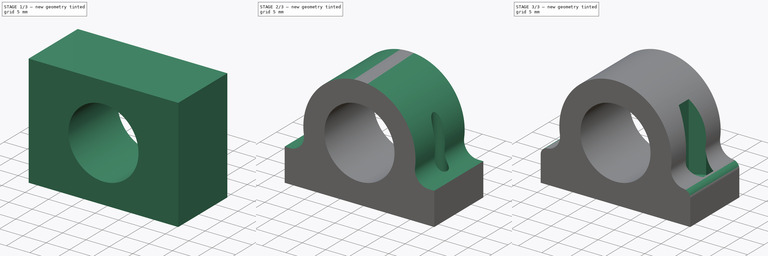
[diagram: build sequence overview — one tinted view per stage of 3, left to right]
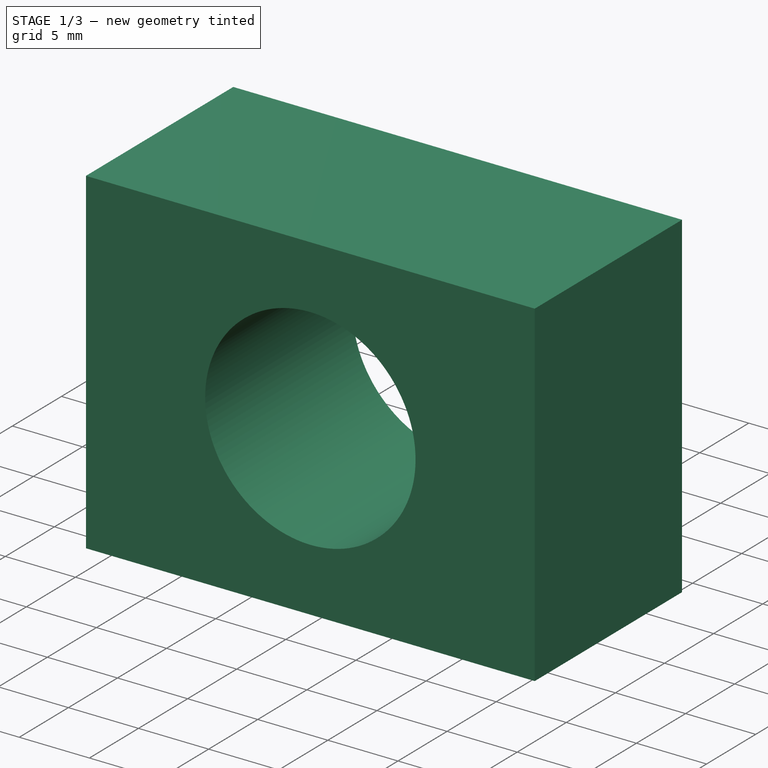
[diagram: stage 1 of 3 — iso view after this stage's code; geometry added in this stage tinted green]
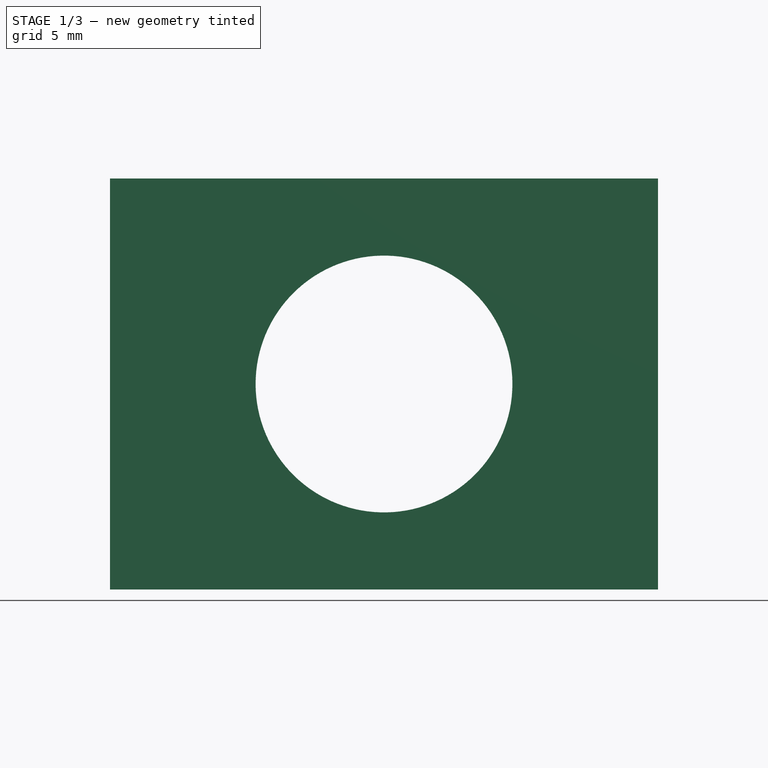
[diagram: stage 1 of 3 — front view after this stage's code; geometry added in this stage tinted green]
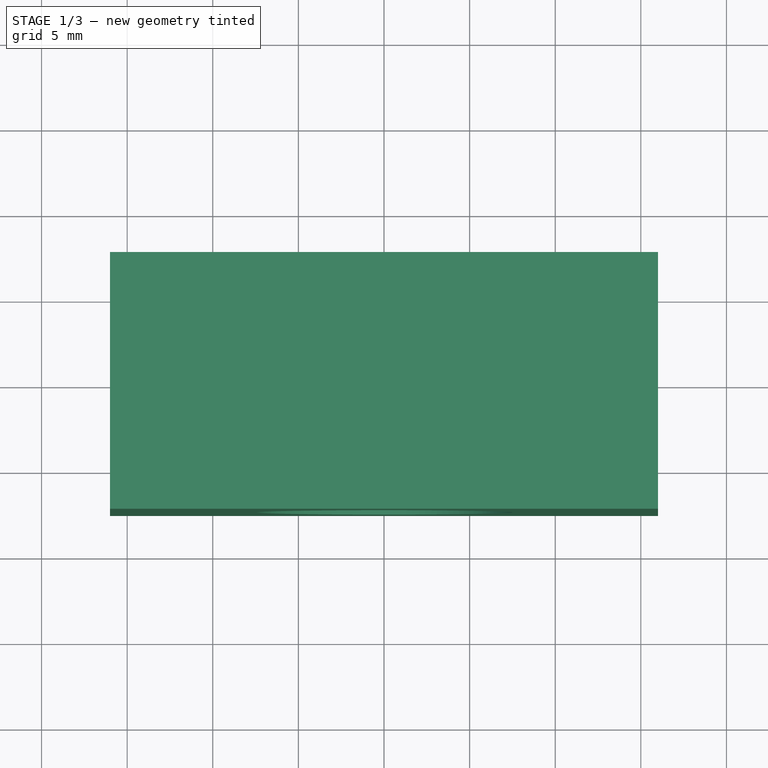
[diagram: stage 1 of 3 — top view after this stage's code; geometry added in this stage tinted green]
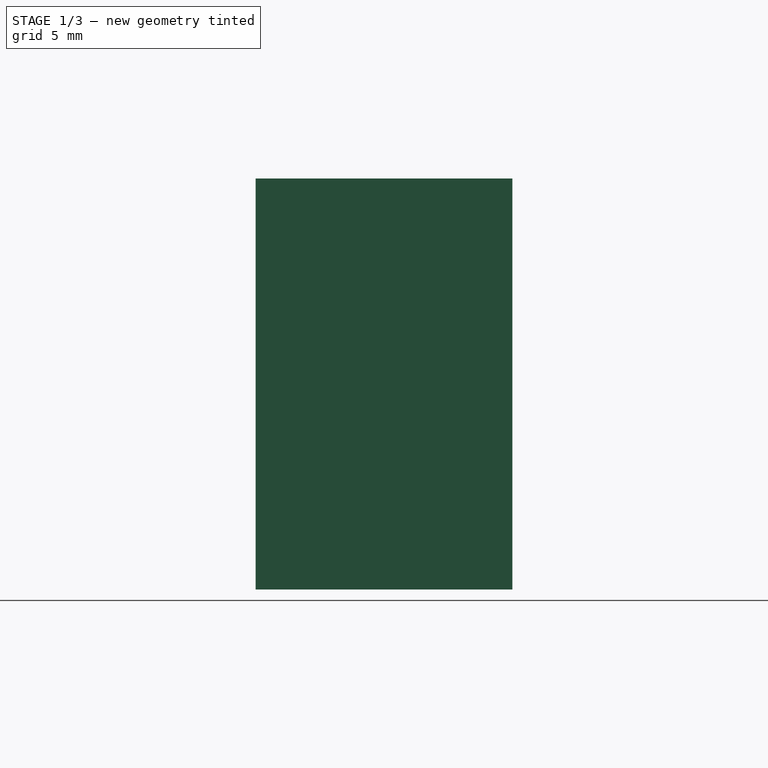
[diagram: stage 1 of 3 — right view after this stage's code; geometry added in this stage tinted green]
FCSTD DOCUMENT  (FreeCAD 0.19R22164 (Git))
Label: lm8uu_Y_Car_holder
License: All rights reserved
LicenseURL: http://en.wikipedia.org/wiki/All_rights_reserved
objects: Sketcher::SketchObject×5, PartDesign::Pocket×2, PartDesign::Pad×1, PartDesign::Groove×1, PartDesign::Hole×1, PartDesign::Fillet×1, PartDesign::Body×1
note: 18 computed .brp shape members not serialized (recipe doc carries the construction recipe); baked Part::Feature solids carry a one-line shape summary decoded from their .brp

FEATURE [Sketcher::SketchObject] Sketch
  MapMode = 5
  Support = -> [XY_Plane]
  sketch-geometry (4):
    g0: LineSegment StartX=-16 StartY=7.5 StartZ=0 EndX=16 EndY=7.5 EndZ=0
    g1: LineSegment StartX=16 StartY=7.5 StartZ=0 EndX=16 EndY=-7.5 EndZ=0
    g2: LineSegment StartX=16 StartY=-7.5 StartZ=0 EndX=-16 EndY=-7.5 EndZ=0
    g3: LineSegment StartX=-16 StartY=-7.5 StartZ=0 EndX=-16 EndY=7.5 EndZ=0
  constraints (12):
    c: Coincident(g0,g1)
    c: Coincident(g1,g2)
    c: Coincident(g2,g3)
    c: Coincident(g3,g0)
    c: Horizontal(g0)
    c: Horizontal(g2)
    c: Vertical(g1)
    c: Vertical(g3)
    c: DistanceX(g0,g-1) = 16
    c: DistanceX(g0,g0) = 32
    c: DistanceY(g-1,g0) = 7.5
    c: DistanceY(g2,g-1) = 7.5
FEATURE [PartDesign::Pad] Pad
  Length = 24
  Length2 = 100
  Profile = -> Sketch
  Type = 0
FEATURE [Sketcher::SketchObject] Sketch001
  AttachmentOffset = pos=(0,0,12) rot=(0,0,1;0rad)
  MapMode = 5
  Placement = pos=(0,0,12) rot=(0,0,1;0rad)
  Support = -> [XY_Plane]
  sketch-geometry (4):
    g0: LineSegment StartX=0 StartY=7.5 StartZ=0 EndX=-7.5 EndY=7.5 EndZ=0
    g1: LineSegment StartX=-7.5 StartY=7.5 StartZ=0 EndX=-7.5 EndY=-7.5 EndZ=0
    g2: LineSegment StartX=-7.5 StartY=-7.5 StartZ=0 EndX=0 EndY=-7.5 EndZ=0
    g3: LineSegment StartX=0 StartY=-7.5 StartZ=0 EndX=0 EndY=7.5 EndZ=0
  constraints (12):
    c: Coincident(g0,g1)
    c: Coincident(g1,g2)
    c: Coincident(g2,g3)
    c: Coincident(g3,g0)
    c: Horizontal(g0)
    c: Horizontal(g2)
    c: Vertical(g1)
    c: Vertical(g3)
    c: PointOnObject(g0,g-2)
    c: DistanceX(g0,g0) = 7.5
    c: DistanceY(g-1,g0) = 7.5
    c: DistanceY(g2,g-1) = 7.5
FEATURE [PartDesign::Groove] Groove
  Angle = 360
  Axis = (0,1,0)
  Base = (0,0,12)
  BaseFeature = -> Pad
  Profile = -> Sketch001
  ReferenceAxis = -> Sketch001 [V_Axis]
  Reversed = true
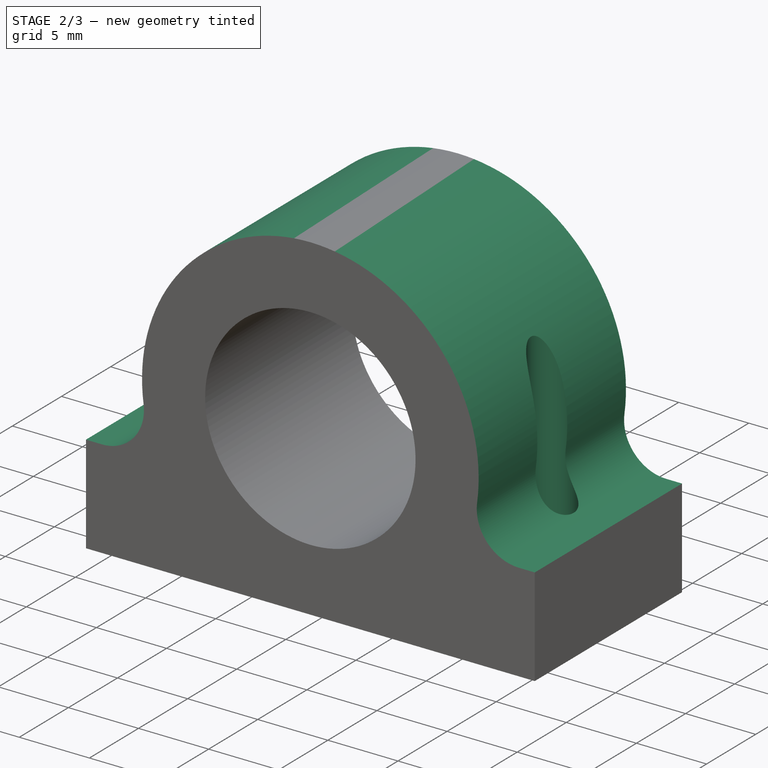
[diagram: stage 2 of 3 — iso view after this stage's code; geometry added in this stage tinted green]
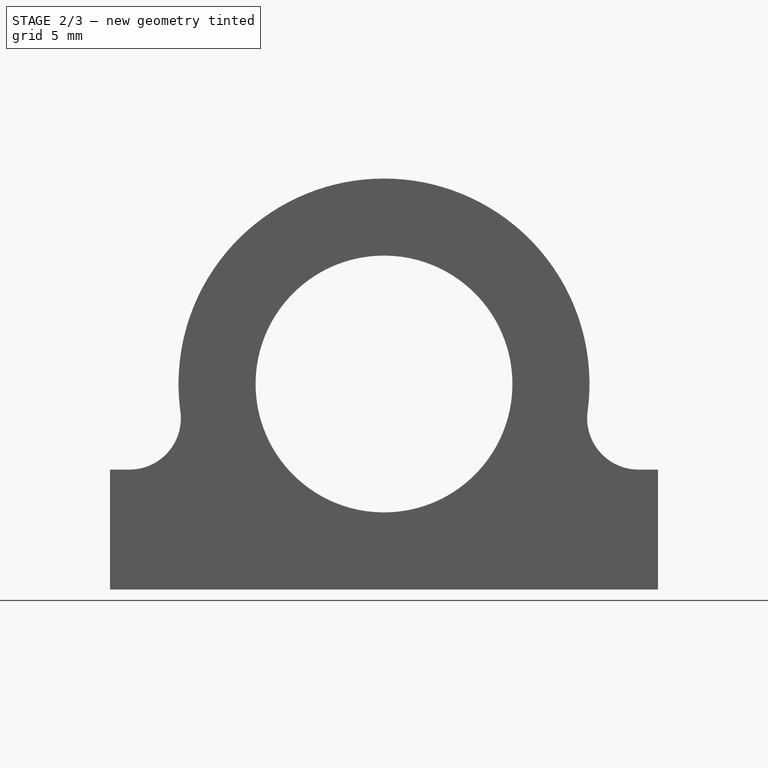
[diagram: stage 2 of 3 — front view after this stage's code; geometry added in this stage tinted green]
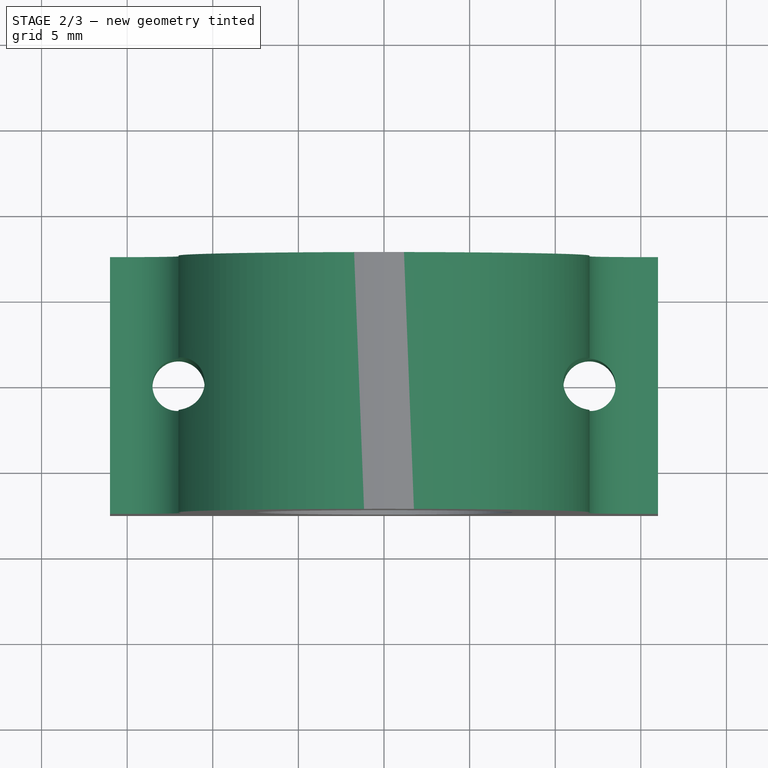
[diagram: stage 2 of 3 — top view after this stage's code; geometry added in this stage tinted green]
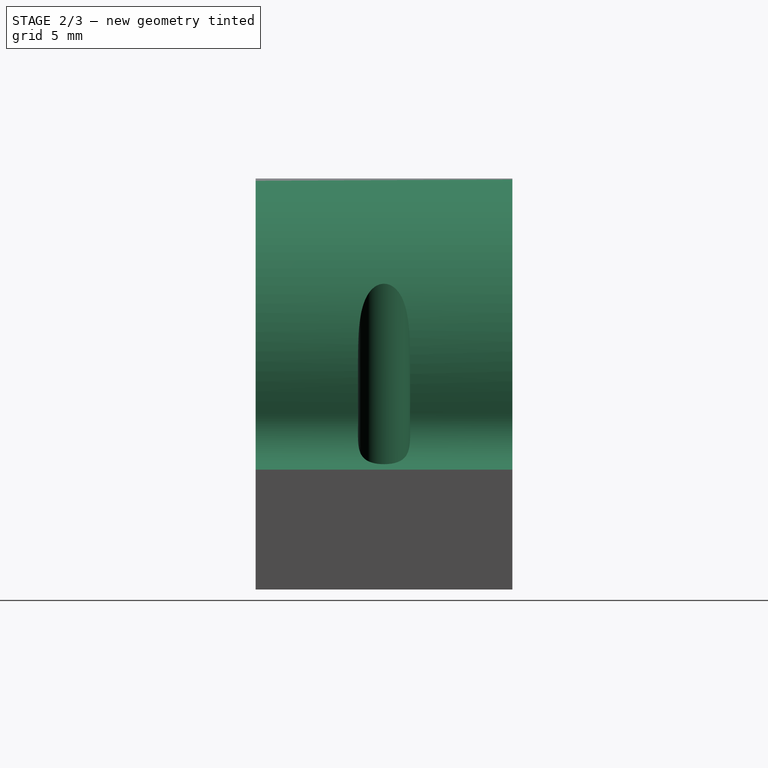
[diagram: stage 2 of 3 — right view after this stage's code; geometry added in this stage tinted green]
FEATURE [Sketcher::SketchObject] Sketch002
  AttachmentOffset = pos=(0,0,24) rot=(0,0,1;0rad)
  MapMode = 5
  Placement = pos=(0,0,24) rot=(0,0,1;0rad)
  Support = -> [XY_Plane]
  sketch-geometry (2):
    g0: Circle CenterX=12 CenterY=0 CenterZ=0 NormalX=0 NormalY=0 NormalZ=1 AngleXU=0 Radius=1.5
    g1: Circle CenterX=-12 CenterY=0 CenterZ=0 NormalX=0 NormalY=0 NormalZ=1 AngleXU=0 Radius=1.5
  constraints (6):
    c: PointOnObject(g0,g-1)
    c: Radius(g0) = 1.5
    c: PointOnObject(g1,g-1)
    c: Radius(g1) = 1.5
    c: DistanceX(g1,g-1) = 12
    c: DistanceX(g-1,g0) = 12
FEATURE [PartDesign::Hole] Hole
  BaseFeature = -> Groove
  Depth = 25
  DepthType = 0
  Diameter = 3.05
  DrillPoint = 1
  DrillPointAngle = 118
  HoleCutCountersinkAngle = 90
  HoleCutDepth = 0
  HoleCutDiameter = 0
  HoleCutType = 0
  ModelActualThread = false
  Profile = -> Sketch002
  Tapered = false
  TaperedAngle = 90
  ThreadAngle = 0
  ThreadClass = 0
  ThreadCutOffInner = 0
  ThreadCutOffOuter = 0
  ThreadDirection = 0
  ThreadFit = 0
  ThreadPitch = 0
  ThreadSize = 0
  ThreadType = 0
  Threaded = false
FEATURE [Sketcher::SketchObject] Sketch003
  AttachmentOffset = pos=(0,0,24) rot=(0,0,1;0rad)
  MapMode = 5
  Placement = pos=(0,0,24) rot=(0,0,1;0rad)
  Support = -> [XY_Plane]
  sketch-geometry (14):
    g0: LineSegment StartX=14.65 StartY=1.52998 StartZ=0 EndX=12 EndY=3.05996 EndZ=0
    g1: LineSegment StartX=12 StartY=3.05996 StartZ=0 EndX=9.35 EndY=1.52998 EndZ=0
    g2: LineSegment StartX=9.35 StartY=1.52998 StartZ=0 EndX=9.35 EndY=-1.52998 EndZ=0
    g3: LineSegment StartX=9.35 StartY=-1.52998 StartZ=0 EndX=12 EndY=-3.05996 EndZ=0
    g4: LineSegment StartX=12 StartY=-3.05996 StartZ=0 EndX=14.65 EndY=-1.52998 EndZ=0
    g5: LineSegment StartX=14.65 StartY=-1.52998 StartZ=0 EndX=14.65 EndY=1.52998 EndZ=0
    g6: Circle [constr] CenterX=12 CenterY=0 CenterZ=0 NormalX=0 NormalY=0 NormalZ=1 AngleXU=0 Radius=3.05996
    g7: LineSegment StartX=-9.35 StartY=1.52998 StartZ=0 EndX=-12 EndY=3.05996 EndZ=0
    g8: LineSegment StartX=-12 StartY=3.05996 StartZ=0 EndX=-14.65 EndY=1.52998 EndZ=0
    g9: LineSegment StartX=-14.65 StartY=1.52998 StartZ=0 EndX=-14.65 EndY=-1.52998 EndZ=0
    g10: LineSegment StartX=-14.65 StartY=-1.52998 StartZ=0 EndX=-12 EndY=-3.05996 EndZ=0
    g11: LineSegment StartX=-12 StartY=-3.05996 StartZ=0 EndX=-9.35 EndY=-1.52998 EndZ=0
    g12: LineSegment StartX=-9.35 StartY=-1.52998 StartZ=0 EndX=-9.35 EndY=1.52998 EndZ=0
    g13: Circle [constr] CenterX=-12 CenterY=0 CenterZ=0 NormalX=0 NormalY=0 NormalZ=1 AngleXU=0 Radius=3.05996
  constraints (34):
    c: Coincident(g0,g1)
    c: Coincident(g1,g2)
    c: Coincident(g2,g3)
    c: Coincident(g3,g4)
    c: Coincident(g4,g5)
    c: Coincident(g5,g0)
    c: Equal(g0, g1-g5) x5
    c: PointOnObject(g0,g6)
    c: PointOnObject(g1,g6)
    c: PointOnObject(g2,g6)
    c: PointOnObject(g3,g6)
    c: PointOnObject(g4,g6)
    c: PointOnObject(g5,g6)
    c: PointOnObject(g6,g-1)
    c: Coincident(g7,g8)
    c: Coincident(g8,g9)
    c: Coincident(g9,g10)
    c: Coincident(g10,g11)
    c: Coincident(g11,g12)
    c: Coincident(g12,g7)
    c: Equal(g7, g8-g12) x5
    c: PointOnObject(g7,g13)
    c: PointOnObject(g8,g13)
    c: PointOnObject(g9,g13)
    c: PointOnObject(g10,g13)
    c: PointOnObject(g11,g13)
    c: PointOnObject(g12,g13)
    c: PointOnObject(g13,g-1)
    c: Vertical(g5)
    c: Vertical(g9)
    c: DistanceX(g2,g4) = 5.3
    c: DistanceX(g9,g11) = 5.3
    c: DistanceX(g13,g-1) = 12
    c: DistanceX(g-1,g6) = 12
FEATURE [Sketcher::SketchObject] Sketch004
  MapMode = 5
  Placement = pos=(0,0,0) rot=(1,0,0;1.5708rad)
  Support = -> [XZ_Plane]
  sketch-geometry (8):
    g0: LineSegment StartX=-25 StartY=7 StartZ=0 EndX=-14.8661 EndY=7 EndZ=0
    g1: ArcOfCircle CenterX=0 CenterY=12 CenterZ=0 NormalX=0 NormalY=0 NormalZ=1 AngleXU=0 Radius=12 StartAngle=6.14945 EndAngle=9.55851
    g2: LineSegment StartX=14.8661 StartY=7 StartZ=0 EndX=25 EndY=7 EndZ=0
    g3: LineSegment StartX=-25 StartY=7 StartZ=0 EndX=-25 EndY=37.1479 EndZ=0
    g4: LineSegment StartX=25 StartY=7 StartZ=0 EndX=25 EndY=37.1479 EndZ=0
    g5: LineSegment StartX=25 StartY=37.1479 StartZ=0 EndX=-25 EndY=37.1479 EndZ=0
    g6: ArcOfCircle CenterX=14.8661 CenterY=10 CenterZ=0 NormalX=0 NormalY=0 NormalZ=1 AngleXU=0 Radius=3 StartAngle=3.00786 EndAngle=4.71239
    g7: ArcOfCircle CenterX=-14.8661 CenterY=10 CenterZ=0 NormalX=0 NormalY=0 NormalZ=1 AngleXU=0 Radius=3 StartAngle=4.71239 EndAngle=6.41692
  constraints (22):
    c: Horizontal(g0)
    c: Horizontal(g2)
    c: Coincident(g3,g0)
    c: Vertical(g3)
    c: Coincident(g4,g2)
    c: Vertical(g4)
    c: Coincident(g5,g4)
    c: Coincident(g5,g3)
    c: Horizontal(g5)
    c: DistanceX(g0,g-1) = 25
    c: DistanceX(g-1,g2) = 25
    c: Radius(g1) = 12
    c: PointOnObject(g1,g-2)
    c: Equal(g2,g0)
    c: DistanceY(g-1,g1) = 12
    c: DistanceY(g-1,g2) = 7
    c: Tangent(g1,g6) = 1.5708
    c: Tangent(g2,g6) = -1.5708
    c: Tangent(g1,g7) = 1.5708
    c: Tangent(g0,g7) = -1.5708
    c: Radius(g6) = 3
    c: Equal(g6,g7)
FEATURE [PartDesign::Pocket] Pocket
  BaseFeature = -> Hole
  Length = 13
  Length2 = 100
  Midplane = true
  Profile = -> Sketch004
  Type = 1
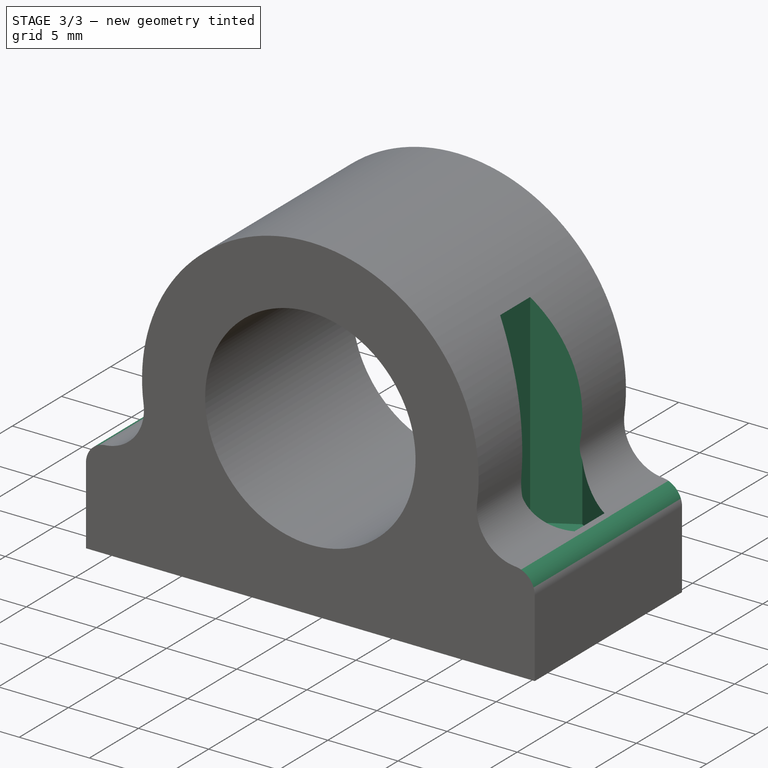
[diagram: stage 3 of 3 — iso view after this stage's code; geometry added in this stage tinted green]
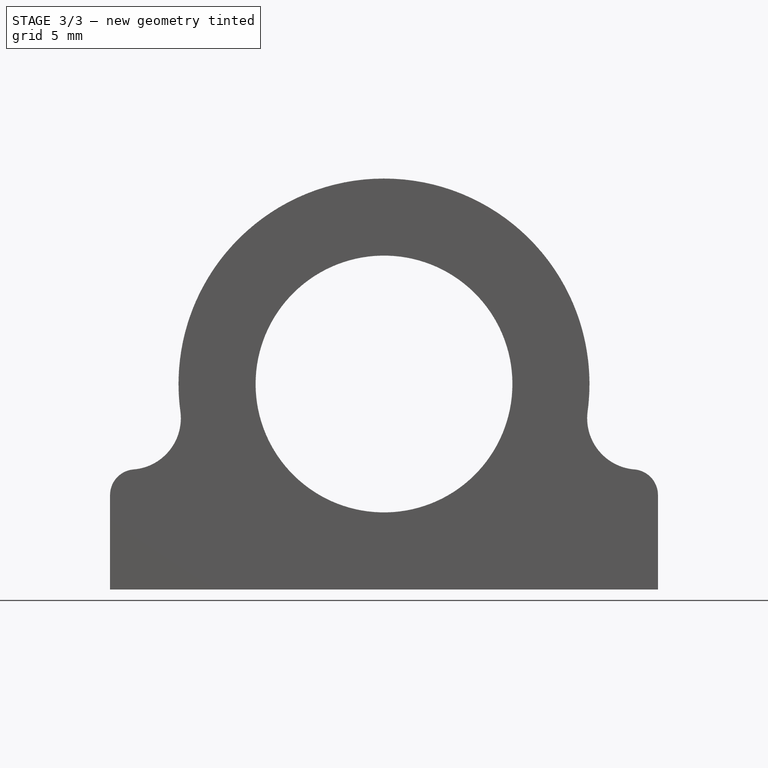
[diagram: stage 3 of 3 — front view after this stage's code; geometry added in this stage tinted green]
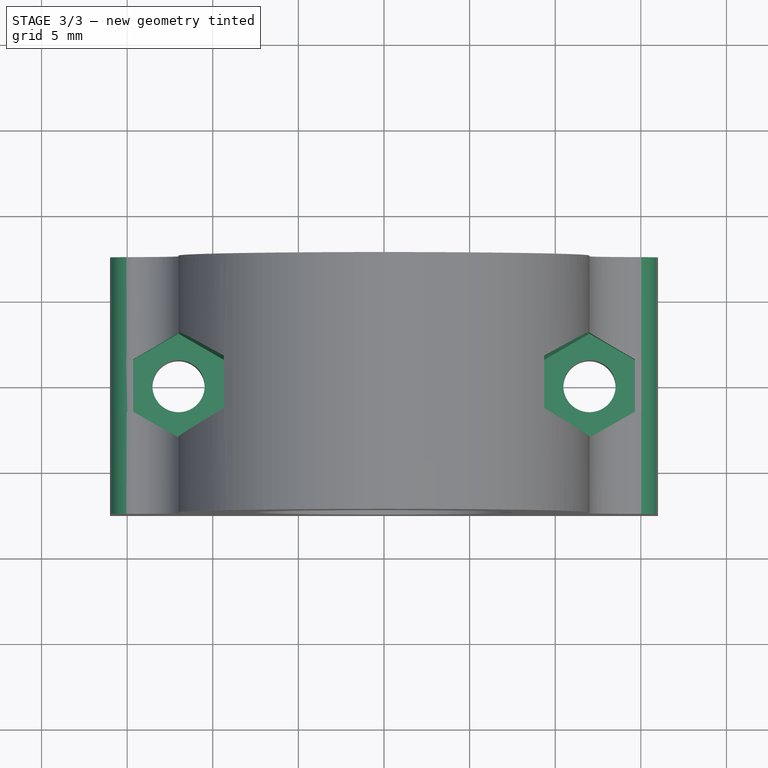
[diagram: stage 3 of 3 — top view after this stage's code; geometry added in this stage tinted green]
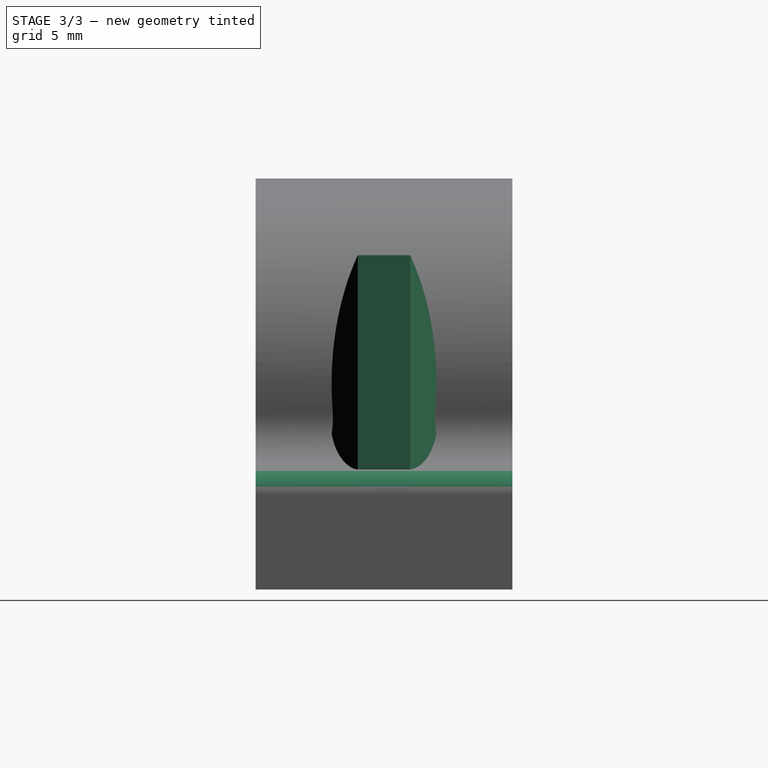
[diagram: stage 3 of 3 — right view after this stage's code; geometry added in this stage tinted green]
FEATURE [PartDesign::Pocket] Pocket001
  BaseFeature = -> Pocket
  Length = 19
  Length2 = 100
  Profile = -> Sketch003
  Type = 0
FEATURE [PartDesign::Fillet] Fillet
  Base = -> Pocket001 [Edge17,Edge50]
  BaseFeature = -> Pocket001
  Radius = 1.5
  SupportTransform = false
FEATURE [PartDesign::Body] Body
  Group = -> [Sketch,Pad,Sketch001,Groove,Sketch002,Hole,Sketch003,Sketch004,Pocket,Pocket001,Fillet]
  Origin = -> Origin
  Tip = -> Fillet
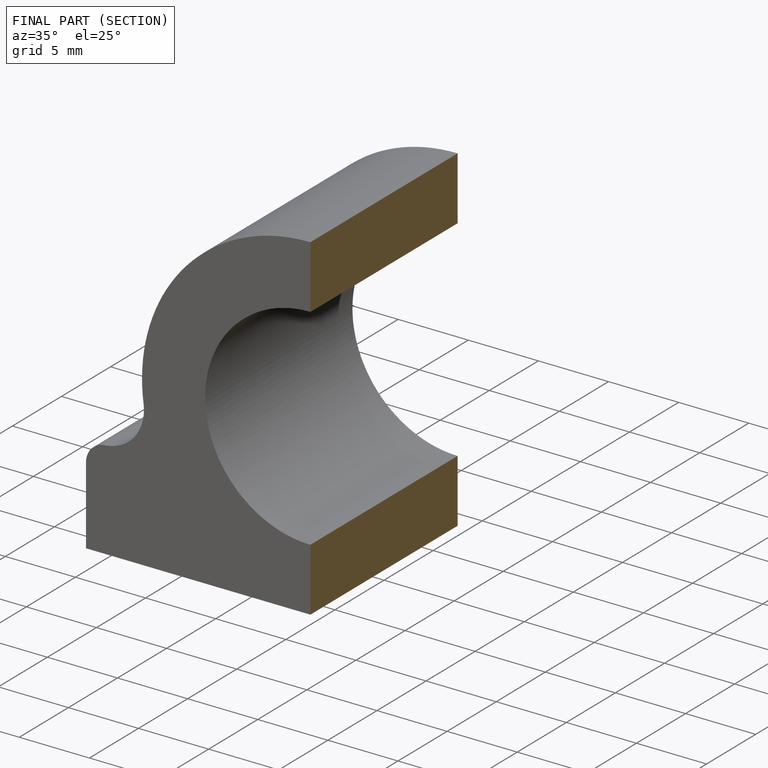
[diagram: finished part — half-section view (interior)]
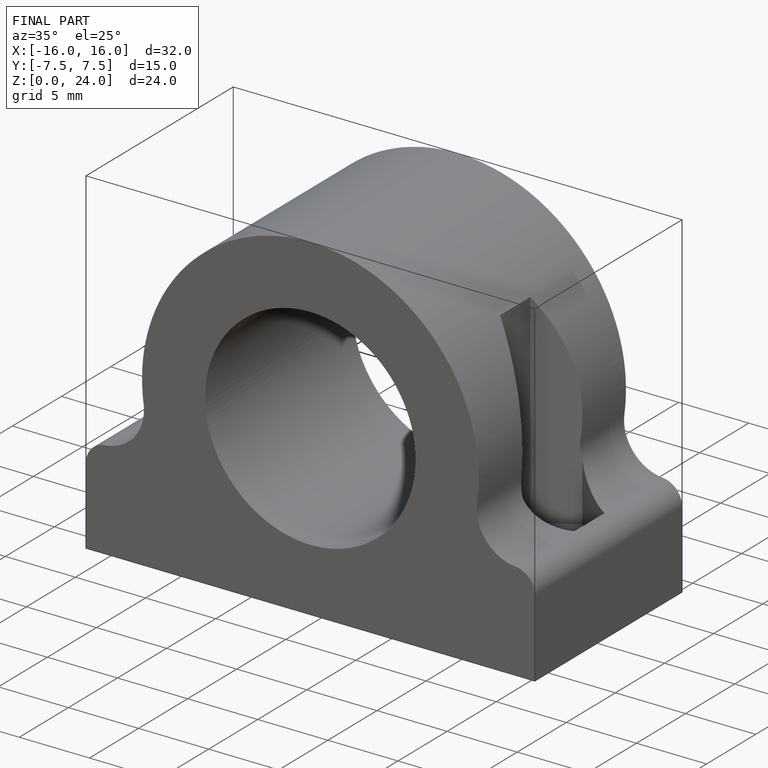
[diagram: finished part — iso view with bounding-box wireframe]
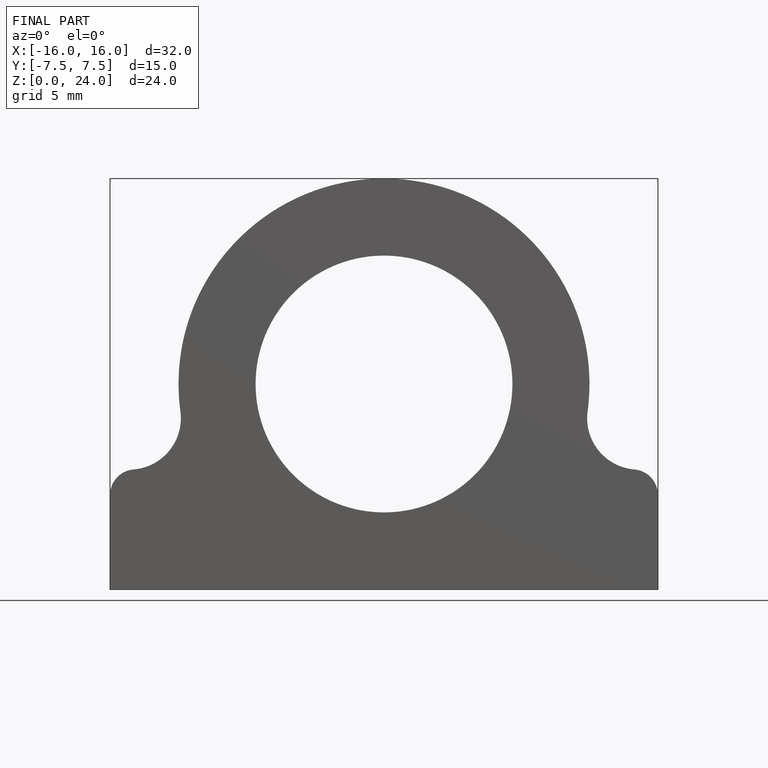
[diagram: finished part — front view with bounding-box wireframe]
